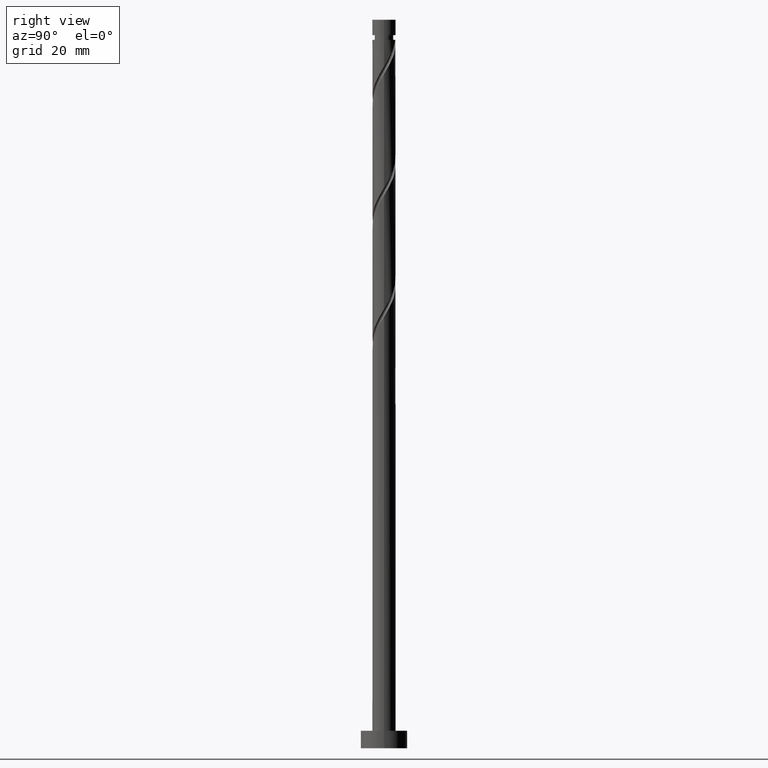
[diagram: clean part render]
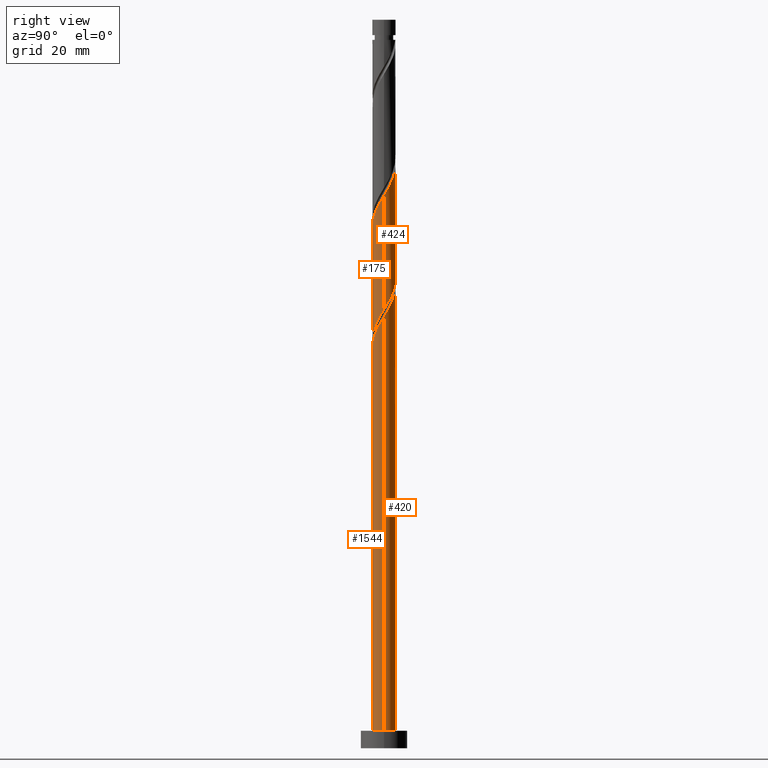
[diagram: same view with one multi-face feature highlighted, each face labeled with its STEP entity id]
A machine part, right view. The highlighted faces form ONE feature: a constant-radius fillet chain: 4 tangent blend faces with common blend radius 2 mm. The faces share edges in the B-rep.
Their STEP definitions:
[1] entity #1544 (Cylinder):
#44 = CARTESIAN_POINT ( 'NONE',  ( 2.000000000000000000, 2.449293598294705921E-16, 3.000000000000000000 ) ) ;
#127 = CARTESIAN_POINT ( 'NONE',  ( -2.000000000000000000, 0.000000000000000000, 125.0000000000000000 ) ) ;
#130 = VECTOR ( 'NONE', #1266, 1000.000000000000000 ) ;
#137 = EDGE_CURVE ( 'NONE', #1291, #1518, #1290, .T. ) ;
#153 = DIRECTION ( 'NONE',  ( -0.000000000000000000, -0.000000000000000000, -1.000000000000000000 ) ) ;
#192 = CARTESIAN_POINT ( 'NONE',  ( -1.896963788657572314, -0.7084284778787400816, 64.78445145408092287 ) ) ;
#199 = CARTESIAN_POINT ( 'NONE',  ( -0.8300743961697168993, -1.819608885673921428, 67.38861812074759428 ) ) ;
#204 = AXIS2_PLACEMENT_3D ( 'NONE', #519, #1367, #390 ) ;
#209 = CARTESIAN_POINT ( 'NONE',  ( 0.08756147180655660112, -2.023036211342433166, 68.95111812074759428 ) ) ;
#252 = CARTESIAN_POINT ( 'NONE',  ( 0.000000000000000000, 0.000000000000000000, 125.0000000000000000 ) ) ;
#299 = CARTESIAN_POINT ( 'NONE',  ( 1.259949568624708416, -1.585203333415019511, 71.03445145408092287 ) ) ;
#310 = CARTESIAN_POINT ( 'NONE',  ( -2.000000000000002665, -2.024068875732766168E-15, 63.59881567927732959 ) ) ;
#326 = CARTESIAN_POINT ( 'NONE',  ( -1.741083561036295801, -0.9841890232517237491, 65.30528478741425147 ) ) ;
#390 = DIRECTION ( 'NONE',  ( 1.000000000000000000, 0.000000000000000000, 0.000000000000000000 ) ) ;
#393 = DIRECTION ( 'NONE',  ( -1.000000000000000000, 0.000000000000000000, 0.000000000000000000 ) ) ;
#443 = CARTESIAN_POINT ( 'NONE',  ( 1.987057982840711556, -0.2271575946980715077, 73.63861812074758006 ) ) ;
#519 = CARTESIAN_POINT ( 'NONE',  ( 0.000000000000000000, 0.000000000000000000, 3.000000000000000000 ) ) ;
#522 = EDGE_CURVE ( 'NONE', #1097, #1291, #1207, .T. ) ;
#568 = CARTESIAN_POINT ( 'NONE',  ( -1.585203333415019511, -1.259949568624708416, 65.82611812074759428 ) ) ;
#662 = CARTESIAN_POINT ( 'NONE',  ( 2.000000000000000000, 2.449293598294705921E-16, 125.0000000000000000 ) ) ;
#668 = CARTESIAN_POINT ( 'NONE',  ( 0.9841890232517237491, -1.741083561036295801, 70.51361812074758006 ) ) ;
#697 = DIRECTION ( 'NONE',  ( -0.000000000000000000, -0.000000000000000000, -1.000000000000000000 ) ) ;
#714 =( BOUNDED_CURVE ( )  B_SPLINE_CURVE ( 2, ( #310, #790, #798, #192, #326, #568, #806, #893, #199, #1041, #1274, #209, #1293, #1534, #668, #299, #1282, #1166, #1025, #1519, #443, #1526, #930 ),
 .UNSPECIFIED., .F., .T. ) 
 B_SPLINE_CURVE_WITH_KNOTS ( ( 3, 2, 2, 2, 2, 2, 2, 2, 2, 2, 2, 3 ),
 ( 0.05453220231385504102, 0.06250000000000000000, 0.07499999999999995559, 0.08750000000000002220, 0.09999999999999997780, 0.1125000000000000444, 0.1250000000000000000, 0.1374999999999999556, 0.1500000000000000222, 0.1624999999999999778, 0.1750000000000000444, 0.1795322023138551937 ),
 .UNSPECIFIED. ) 
 CURVE ( )  GEOMETRIC_REPRESENTATION_ITEM ( )  RATIONAL_B_SPLINE_CURVE ( ( 0.9039174447099427301, 0.9019565955404718061, 0.9090909090909204959, 0.8978984914501364489, 0.9090909090909204959, 0.8978984914501364489, 0.9090909090909204959, 0.8978984914501364489, 0.9090909090909204959, 0.8978984914501364489, 0.9090909090909204959, 0.8978984914501364489, 0.9090909090909204959, 0.8978984914501364489, 0.9090909090909204959, 0.8978984914501364489, 0.9090909090909204959, 0.8978984914501364489, 0.9090909090909204959, 0.8978984914501364489, 0.9090909090909204959, 0.9050328050005848057, 0.9039174447099426191 ) ) 
 REPRESENTATION_ITEM ( '' )  );
#717 = VECTOR ( 'NONE', #697, 1000.000000000000000 ) ;
#782 = EDGE_LOOP ( 'NONE', ( #965, #1429, #1447, #1082 ) ) ;
#790 = CARTESIAN_POINT ( 'NONE',  ( -2.000000000000003997, -0.2010075630518384504, 63.93312025468517135 ) ) ;
#791 = CARTESIAN_POINT ( 'NONE',  ( -2.000000000000000000, 0.000000000000000000, 3.000000000000000000 ) ) ;
#798 = CARTESIAN_POINT ( 'NONE',  ( -1.960000000000002629, -0.3979949748426483414, 64.26361812074758006 ) ) ;
#806 = CARTESIAN_POINT ( 'NONE',  ( -1.351737732275876569, -1.474043792816781329, 66.34695145408090866 ) ) ;
#861 = EDGE_CURVE ( 'NONE', #1097, #1570, #714, .T. ) ;
#893 = CARTESIAN_POINT ( 'NONE',  ( -1.118272131136734071, -1.688138017008854463, 66.86778478741425147 ) ) ;
#930 = CARTESIAN_POINT ( 'NONE',  ( 2.000000000000002665, 1.724206820068652837E-15, 74.01548234594399389 ) ) ;
#931 = AXIS2_PLACEMENT_3D ( 'NONE', #252, #153, #393 ) ;
#965 = ORIENTED_EDGE ( 'NONE', *, *, #1200, .F. ) ;
#998 = FACE_OUTER_BOUND ( 'NONE', #782, .T. ) ;
#1025 = CARTESIAN_POINT ( 'NONE',  ( 1.819608885673921428, -0.8300743961697168993, 72.59695145408090866 ) ) ;
#1041 = CARTESIAN_POINT ( 'NONE',  ( -0.5418766612026993945, -1.951079754338989947, 67.90945145408092287 ) ) ;
#1082 = ORIENTED_EDGE ( 'NONE', *, *, #137, .T. ) ;
#1097 = VERTEX_POINT ( 'NONE', #1109 ) ;
#1109 = CARTESIAN_POINT ( 'NONE',  ( -2.000000000000002665, -2.024068875732766168E-15, 63.59881567927732959 ) ) ;
#1143 = LINE ( 'NONE', #662, #130 ) ;
#1166 = CARTESIAN_POINT ( 'NONE',  ( 1.688138017008854463, -1.118272131136734293, 72.07611812074760849 ) ) ;
#1200 = EDGE_CURVE ( 'NONE', #1570, #1518, #1143, .T. ) ;
#1207 = LINE ( 'NONE', #127, #717 ) ;
#1233 = CYLINDRICAL_SURFACE ( 'NONE', #931, 2.000000000000000000 ) ;
#1266 = DIRECTION ( 'NONE',  ( -0.000000000000000000, -0.000000000000000000, -1.000000000000000000 ) ) ;
#1274 = CARTESIAN_POINT ( 'NONE',  ( -0.2271575946980713689, -1.987057982840711556, 68.43028478741423726 ) ) ;
#1282 = CARTESIAN_POINT ( 'NONE',  ( 1.474043792816781329, -1.351737732275876569, 71.55528478741425147 ) ) ;
#1291 = VERTEX_POINT ( 'NONE', #791 ) ;
#1290 = CIRCLE ( 'NONE', #204, 2.000000000000000000 ) ;
#1293 = CARTESIAN_POINT ( 'NONE',  ( 0.3979949748426481748, -1.960000000000002629, 69.47195145408090866 ) ) ;
#1367 = DIRECTION ( 'NONE',  ( 0.000000000000000000, 0.000000000000000000, 1.000000000000000000 ) ) ;
#1371 = CARTESIAN_POINT ( 'NONE',  ( 2.000000000000002665, 1.724206820068652837E-15, 74.01548234594399389 ) ) ;
#1429 = ORIENTED_EDGE ( 'NONE', *, *, #861, .F. ) ;
#1447 = ORIENTED_EDGE ( 'NONE', *, *, #522, .T. ) ;
#1518 = VERTEX_POINT ( 'NONE', #44 ) ;
#1519 = CARTESIAN_POINT ( 'NONE',  ( 1.951079754338989947, -0.5418766612026996166, 73.11778478741426568 ) ) ;
#1526 = CARTESIAN_POINT ( 'NONE',  ( 2.000000000000002665, -0.1139474748928666625, 73.82597125673669325 ) ) ;
#1534 = CARTESIAN_POINT ( 'NONE',  ( 0.7084284778787399706, -1.896963788657572314, 69.99278478741427989 ) ) ;
#1544 = ADVANCED_FACE ( 'NONE', ( #998 ), #1233, .T. ) ;
#1570 = VERTEX_POINT ( 'NONE', #1371 ) ;
[2] entity #420 (Cylinder):
#29 = CARTESIAN_POINT ( 'NONE',  ( -1.585203333415016624, 1.259949568624707084, 62.70111812074760849 ) ) ;
#44 = CARTESIAN_POINT ( 'NONE',  ( 2.000000000000000000, 2.449293598294705921E-16, 3.000000000000000000 ) ) ;
#45 = ORIENTED_EDGE ( 'NONE', *, *, #1200, .T. ) ;
#56 = CARTESIAN_POINT ( 'NONE',  ( -2.000000000000003109, 0.1139474748928649694, 84.24263792340337886 ) ) ;
#63 = CARTESIAN_POINT ( 'NONE',  ( -1.999999999999999556, -8.621034100343330052E-15, 64.92842056221788027 ) ) ;
#71 = CARTESIAN_POINT ( 'NONE',  ( -1.259949568624708416, 1.585203333415019511, 81.45111812074760849 ) ) ;
#85 = CARTESIAN_POINT ( 'NONE',  ( -0.2271575946980705363, 1.987057982840708892, 60.09695145408091577 ) ) ;
#115 = CARTESIAN_POINT ( 'NONE',  ( -2.000000000000002665, -2.024068875732766168E-15, 84.43214901261065108 ) ) ;
#125 = ORIENTED_EDGE ( 'NONE', *, *, #266, .F. ) ;
#127 = CARTESIAN_POINT ( 'NONE',  ( -2.000000000000000000, 0.000000000000000000, 125.0000000000000000 ) ) ;
#130 = VECTOR ( 'NONE', #1266, 1000.000000000000000 ) ;
#155 = DIRECTION ( 'NONE',  ( 0.000000000000000000, 0.000000000000000000, 1.000000000000000000 ) ) ;
#162 = DIRECTION ( 'NONE',  ( 0.000000000000000000, -8.673617379884037050E-15, -1.000000000000000000 ) ) ;
#187 = CARTESIAN_POINT ( 'NONE',  ( -0.08756147180655639295, 2.023036211342433166, 79.36778478741423726 ) ) ;
#200 = CARTESIAN_POINT ( 'NONE',  ( -2.000000000000000000, 0.000000000000000000, 125.0000000000000000 ) ) ;
#229 = CARTESIAN_POINT ( 'NONE',  ( -0.3979949748426479528, 1.960000000000002629, 59.05528478741425857 ) ) ;
#239 = ORIENTED_EDGE ( 'NONE', *, *, #522, .F. ) ;
#266 = EDGE_CURVE ( 'NONE', #1570, #516, #1533, .T. ) ;
#267 = CARTESIAN_POINT ( 'NONE',  ( -1.896963788657569205, 0.7084284778787394155, 63.74278478741427278 ) ) ;
#273 = CARTESIAN_POINT ( 'NONE',  ( -0.3979949748426479528, 1.960000000000002629, 59.05528478741425857 ) ) ;
#293 = DIRECTION ( 'NONE',  ( -0.000000000000000000, -0.000000000000000000, -1.000000000000000000 ) ) ;
#295 = CARTESIAN_POINT ( 'NONE',  ( -1.987057982840711556, 0.2271575946980712857, 84.05528478741422305 ) ) ;
#353 = CARTESIAN_POINT ( 'NONE',  ( -0.9841890232517239712, 1.741083561036295579, 60.09695145408091577 ) ) ;
#405 = CARTESIAN_POINT ( 'NONE',  ( 0.08756147180655712847, 2.023036211342430946, 59.57611812074759428 ) ) ;
#417 = CARTESIAN_POINT ( 'NONE',  ( 1.118272131136734293, 1.688138017008854019, 77.28445145408090866 ) ) ;
#420 = ADVANCED_FACE ( 'NONE', ( #1555 ), #1050, .T. ) ;
#423 = ORIENTED_EDGE ( 'NONE', *, *, #592, .F. ) ;
#429 = CARTESIAN_POINT ( 'NONE',  ( 1.741083561036296024, 0.9841890232517237491, 75.72195145408092287 ) ) ;
#450 = CARTESIAN_POINT ( 'NONE',  ( -1.819608885673921650, 0.8300743961697165663, 62.18028478741424436 ) ) ;
#485 = VERTEX_POINT ( 'NONE', #1063 ) ;
#516 = VERTEX_POINT ( 'NONE', #115 ) ;
#522 = EDGE_CURVE ( 'NONE', #1097, #1291, #1207, .T. ) ;
#525 = CARTESIAN_POINT ( 'NONE',  ( 0.2271575946980718130, 1.987057982840711556, 78.84695145408093708 ) ) ;
#529 = CARTESIAN_POINT ( 'NONE',  ( 0.000000000000000000, 0.000000000000000000, 59.05528478741428700 ) ) ;
#537 = CARTESIAN_POINT ( 'NONE',  ( 2.000000000000003109, 0.2010075630518418921, 74.34978692135183564 ) ) ;
#553 = CARTESIAN_POINT ( 'NONE',  ( 1.351737732275876569, 1.474043792816780885, 76.76361812074756585 ) ) ;
#576 = DIRECTION ( 'NONE',  ( -0.000000000000000000, -0.000000000000000000, -1.000000000000000000 ) ) ;
#579 = AXIS2_PLACEMENT_3D ( 'NONE', #1479, #155, #1126 ) ;
#592 = EDGE_CURVE ( 'NONE', #731, #1097, #1250, .T. ) ;
#662 = CARTESIAN_POINT ( 'NONE',  ( 2.000000000000000000, 2.449293598294705921E-16, 125.0000000000000000 ) ) ;
#669 = AXIS2_PLACEMENT_3D ( 'NONE', #671, #576, #809 ) ;
#671 = CARTESIAN_POINT ( 'NONE',  ( 0.000000000000000000, 0.000000000000000000, 125.0000000000000000 ) ) ;
#696 = EDGE_CURVE ( 'NONE', #1518, #1291, #1214, .T. ) ;
#697 = DIRECTION ( 'NONE',  ( -0.000000000000000000, -0.000000000000000000, -1.000000000000000000 ) ) ;
#702 = EDGE_CURVE ( 'NONE', #731, #485, #1260, .T. ) ;
#704 = CARTESIAN_POINT ( 'NONE',  ( -2.000000000000002665, 0.1139474748928702291, 63.40930459007006448 ) ) ;
#717 = VECTOR ( 'NONE', #697, 1000.000000000000000 ) ;
#731 = VERTEX_POINT ( 'NONE', #273 ) ;
#752 = ORIENTED_EDGE ( 'NONE', *, *, #1318, .F. ) ;
#762 = CARTESIAN_POINT ( 'NONE',  ( -0.3979949748426479528, 1.960000000000002629, 79.88861812074758006 ) ) ;
#776 = CARTESIAN_POINT ( 'NONE',  ( -0.5418766612026980622, 1.951079754338987504, 60.61778478741427989 ) ) ;
#791 = CARTESIAN_POINT ( 'NONE',  ( -2.000000000000000000, 0.000000000000000000, 3.000000000000000000 ) ) ;
#792 = CARTESIAN_POINT ( 'NONE',  ( -0.7084284778787400816, 1.896963788657572314, 80.40945145408095129 ) ) ;
#804 = CARTESIAN_POINT ( 'NONE',  ( -2.000000000000002665, -2.024068875732766168E-15, 63.59881567927732959 ) ) ;
#809 = DIRECTION ( 'NONE',  ( -1.000000000000000000, 0.000000000000000000, 0.000000000000000000 ) ) ;
#827 = CARTESIAN_POINT ( 'NONE',  ( -1.259949568624708416, 1.585203333415019511, 60.61778478741425857 ) ) ;
#855 = CARTESIAN_POINT ( 'NONE',  ( -2.000000000000001776, 0.2010075630518327605, 64.59411598681002431 ) ) ;
#862 = CARTESIAN_POINT ( 'NONE',  ( -1.741083561036292915, 0.9841890232517229720, 63.22195145408092287 ) ) ;
#880 =( BOUNDED_CURVE ( )  B_SPLINE_CURVE ( 2, ( #1473, #855, #1350, #267, #862, #29, #993, #1480, #894, #776, #85, #405, #904 ),
 .UNSPECIFIED., .F., .T. ) 
 B_SPLINE_CURVE_WITH_KNOTS ( ( 3, 2, 2, 2, 2, 2, 3 ),
 ( 0.9295322023138548051, 0.9375000000000000000, 0.9499999999999999556, 0.9625000000000000222, 0.9749999999999999778, 0.9875000000000000444, 1.000000000000000000 ),
 .UNSPECIFIED. ) 
 CURVE ( )  GEOMETRIC_REPRESENTATION_ITEM ( )  RATIONAL_B_SPLINE_CURVE ( ( 0.9039174447099360687, 0.9019565955404648117, 0.9090909090909136125, 0.8978984914501296766, 0.9090909090909136125, 0.8978984914501296766, 0.9090909090909136125, 0.8978984914501296766, 0.9090909090909136125, 0.8978984914501296766, 0.9090909090909136125, 0.8978984914501296766, 0.9090909090909136125 ) ) 
 REPRESENTATION_ITEM ( '' )  );
#894 = CARTESIAN_POINT ( 'NONE',  ( -0.8300743961697151230, 1.819608885673919207, 61.13861812074759428 ) ) ;
#904 = CARTESIAN_POINT ( 'NONE',  ( 0.3979949748426486744, 1.959999999999999520, 59.05528478741425147 ) ) ;
#927 = CARTESIAN_POINT ( 'NONE',  ( -1.951079754338989947, 0.5418766612026993945, 62.70111812074759428 ) ) ;
#967 = EDGE_LOOP ( 'NONE', ( #125, #45, #1380, #239, #423, #1229, #1165, #752 ) ) ;
#993 = CARTESIAN_POINT ( 'NONE',  ( -1.351737732275873904, 1.474043792816779108, 62.18028478741426568 ) ) ;
#1020 = CARTESIAN_POINT ( 'NONE',  ( 1.585203333415019511, 1.259949568624708416, 76.24278478741426568 ) ) ;
#1027 = CARTESIAN_POINT ( 'NONE',  ( 1.896963788657572314, 0.7084284778787397485, 75.20111812074760849 ) ) ;
#1050 = CYLINDRICAL_SURFACE ( 'NONE', #669, 2.000000000000000000 ) ;
#1063 = CARTESIAN_POINT ( 'NONE',  ( 0.3979949748426486189, 1.959999999999999520, 59.05528478741425857 ) ) ;
#1097 = VERTEX_POINT ( 'NONE', #1109 ) ;
#1109 = CARTESIAN_POINT ( 'NONE',  ( -2.000000000000002665, -2.024068875732766168E-15, 63.59881567927732959 ) ) ;
#1126 = DIRECTION ( 'NONE',  ( 1.000000000000000000, 0.000000000000000000, 0.000000000000000000 ) ) ;
#1128 = CARTESIAN_POINT ( 'NONE',  ( 1.960000000000002629, 0.3979949748426480083, 74.68028478741422305 ) ) ;
#1136 = CARTESIAN_POINT ( 'NONE',  ( -1.819608885673921650, 0.8300743961697165663, 83.01361812074758006 ) ) ;
#1142 = EDGE_CURVE ( 'NONE', #1458, #485, #880, .T. ) ;
#1143 = LINE ( 'NONE', #662, #130 ) ;
#1144 = CARTESIAN_POINT ( 'NONE',  ( -0.9841890232517239712, 1.741083561036295579, 80.93028478741423726 ) ) ;
#1152 = CARTESIAN_POINT ( 'NONE',  ( -2.000000000000002665, -2.024068875732766168E-15, 84.43214901261065108 ) ) ;
#1165 = ORIENTED_EDGE ( 'NONE', *, *, #1142, .F. ) ;
#1200 = EDGE_CURVE ( 'NONE', #1570, #1518, #1143, .T. ) ;
#1207 = LINE ( 'NONE', #127, #717 ) ;
#1214 = CIRCLE ( 'NONE', #579, 2.000000000000000000 ) ;
#1227 = DIRECTION ( 'NONE',  ( 0.000000000000000000, 1.000000000000000000, -1.040834085586084257E-14 ) ) ;
#1229 = ORIENTED_EDGE ( 'NONE', *, *, #702, .T. ) ;
#1250 =( BOUNDED_CURVE ( )  B_SPLINE_CURVE ( 2, ( #229, #1306, #353, #827, #1540, #1418, #450, #927, #1319, #704, #804 ),
 .UNSPECIFIED., .F., .T. ) 
 B_SPLINE_CURVE_WITH_KNOTS ( ( 3, 2, 2, 2, 2, 3 ),
 ( 0.000000000000000000, 0.01249999999999995559, 0.02500000000000002220, 0.03749999999999997780, 0.05000000000000004441, 0.05453220231385504102 ),
 .UNSPECIFIED. ) 
 CURVE ( )  GEOMETRIC_REPRESENTATION_ITEM ( )  RATIONAL_B_SPLINE_CURVE ( ( 0.9090909090909204959, 0.8978984914501364489, 0.9090909090909204959, 0.8978984914501364489, 0.9090909090909204959, 0.8978984914501364489, 0.9090909090909204959, 0.8978984914501364489, 0.9090909090909204959, 0.9050328050005849168, 0.9039174447099427301 ) ) 
 REPRESENTATION_ITEM ( '' )  );
#1260 = CIRCLE ( 'NONE', #1472, 2.000000000000000000 ) ;
#1266 = DIRECTION ( 'NONE',  ( -0.000000000000000000, -0.000000000000000000, -1.000000000000000000 ) ) ;
#1277 = CARTESIAN_POINT ( 'NONE',  ( 0.5418766612026999496, 1.951079754338989947, 78.32611812074762270 ) ) ;
#1283 = LINE ( 'NONE', #200, #1524 ) ;
#1291 = VERTEX_POINT ( 'NONE', #791 ) ;
#1306 = CARTESIAN_POINT ( 'NONE',  ( -0.7084284778787400816, 1.896963788657572314, 59.57611812074758006 ) ) ;
#1318 = EDGE_CURVE ( 'NONE', #516, #1458, #1283, .T. ) ;
#1319 = CARTESIAN_POINT ( 'NONE',  ( -1.987057982840711556, 0.2271575946980712857, 63.22195145408092287 ) ) ;
#1350 = CARTESIAN_POINT ( 'NONE',  ( -1.959999999999999520, 0.3979949748426482858, 64.26361812074759428 ) ) ;
#1371 = CARTESIAN_POINT ( 'NONE',  ( 2.000000000000002665, 1.724206820068652837E-15, 74.01548234594399389 ) ) ;
#1375 = CARTESIAN_POINT ( 'NONE',  ( -1.688138017008854463, 1.118272131136734071, 82.49278478741425147 ) ) ;
#1380 = ORIENTED_EDGE ( 'NONE', *, *, #696, .T. ) ;
#1388 = CARTESIAN_POINT ( 'NONE',  ( -1.951079754338989947, 0.5418766612026993945, 83.53445145408092287 ) ) ;
#1404 = CARTESIAN_POINT ( 'NONE',  ( 2.000000000000002665, 1.724206820068652837E-15, 74.01548234594399389 ) ) ;
#1418 = CARTESIAN_POINT ( 'NONE',  ( -1.688138017008854463, 1.118272131136734071, 61.65945145408092287 ) ) ;
#1458 = VERTEX_POINT ( 'NONE', #63 ) ;
#1472 = AXIS2_PLACEMENT_3D ( 'NONE', #529, #162, #1227 ) ;
#1473 = CARTESIAN_POINT ( 'NONE',  ( -1.999999999999999556, -8.621034100343328475E-15, 64.92842056221788027 ) ) ;
#1479 = CARTESIAN_POINT ( 'NONE',  ( 0.000000000000000000, 0.000000000000000000, 3.000000000000000000 ) ) ;
#1480 = CARTESIAN_POINT ( 'NONE',  ( -1.118272131136732073, 1.688138017008851355, 61.65945145408093708 ) ) ;
#1498 = CARTESIAN_POINT ( 'NONE',  ( 0.8300743961697171214, 1.819608885673921650, 77.80528478741425147 ) ) ;
#1512 = CARTESIAN_POINT ( 'NONE',  ( -1.474043792816781329, 1.351737732275876569, 81.97195145408090866 ) ) ;
#1518 = VERTEX_POINT ( 'NONE', #44 ) ;
#1524 = VECTOR ( 'NONE', #293, 1000.000000000000000 ) ;
#1533 =( BOUNDED_CURVE ( )  B_SPLINE_CURVE ( 2, ( #1404, #537, #1128, #1027, #429, #1020, #553, #417, #1498, #1277, #525, #187, #762, #792, #1144, #71, #1512, #1375, #1136, #1388, #295, #56, #1152 ),
 .UNSPECIFIED., .F., .T. ) 
 B_SPLINE_CURVE_WITH_KNOTS ( ( 3, 2, 2, 2, 2, 2, 2, 2, 2, 2, 2, 3 ),
 ( 0.1795322023138551937, 0.1875000000000000000, 0.1999999999999999556, 0.2125000000000000222, 0.2249999999999999778, 0.2375000000000000444, 0.2500000000000000000, 0.2624999999999999556, 0.2750000000000000222, 0.2874999999999999778, 0.3000000000000000444, 0.3045322023138552492 ),
 .UNSPECIFIED. ) 
 CURVE ( )  GEOMETRIC_REPRESENTATION_ITEM ( )  RATIONAL_B_SPLINE_CURVE ( ( 0.9039174447099426191, 0.9019565955404720281, 0.9090909090909204959, 0.8978984914501364489, 0.9090909090909204959, 0.8978984914501364489, 0.9090909090909204959, 0.8978984914501364489, 0.9090909090909204959, 0.8978984914501364489, 0.9090909090909204959, 0.8978984914501364489, 0.9090909090909204959, 0.8978984914501364489, 0.9090909090909204959, 0.8978984914501364489, 0.9090909090909204959, 0.8978984914501364489, 0.9090909090909204959, 0.8978984914501364489, 0.9090909090909204959, 0.9050328050005848057, 0.9039174447099427301 ) ) 
 REPRESENTATION_ITEM ( '' )  );
#1540 = CARTESIAN_POINT ( 'NONE',  ( -1.474043792816781329, 1.351737732275876569, 61.13861812074759428 ) ) ;
#1555 = FACE_OUTER_BOUND ( 'NONE', #967, .T. ) ;
#1570 = VERTEX_POINT ( 'NONE', #1371 ) ;
[3] entity #175 (Cylinder):
#18 = CARTESIAN_POINT ( 'NONE',  ( 0.2271575946980702587, -1.987057982840708892, 70.51361812074758006 ) ) ;
#46 = CARTESIAN_POINT ( 'NONE',  ( -1.960000000000002629, -0.3979949748426483414, 85.09695145408090866 ) ) ;
#54 = LINE ( 'NONE', #648, #205 ) ;
#63 = CARTESIAN_POINT ( 'NONE',  ( -1.999999999999999556, -8.621034100343330052E-15, 64.92842056221788027 ) ) ;
#69 = CARTESIAN_POINT ( 'NONE',  ( 2.000000000000003997, -0.1139474748928583220, 94.65930459007007869 ) ) ;
#113 = ORIENTED_EDGE ( 'NONE', *, *, #1439, .F. ) ;
#115 = CARTESIAN_POINT ( 'NONE',  ( -2.000000000000002665, -2.024068875732766168E-15, 84.43214901261065108 ) ) ;
#161 = CARTESIAN_POINT ( 'NONE',  ( 1.585203333415016624, -1.259949568624707306, 73.11778478741427989 ) ) ;
#168 = CARTESIAN_POINT ( 'NONE',  ( -2.000000000000002665, -2.024068875732766168E-15, 84.43214901261065108 ) ) ;
#175 = ADVANCED_FACE ( 'NONE', ( #268 ), #1117, .T. ) ;
#200 = CARTESIAN_POINT ( 'NONE',  ( -2.000000000000000000, 0.000000000000000000, 125.0000000000000000 ) ) ;
#205 = VECTOR ( 'NONE', #1504, 1000.000000000000000 ) ;
#208 = VERTEX_POINT ( 'NONE', #1460 ) ;
#265 = CARTESIAN_POINT ( 'NONE',  ( -0.8300743961697168993, -1.819608885673921428, 88.22195145408092287 ) ) ;
#268 = FACE_OUTER_BOUND ( 'NONE', #482, .T. ) ;
#281 = DIRECTION ( 'NONE',  ( -0.000000000000000000, -0.000000000000000000, -1.000000000000000000 ) ) ;
#292 = CARTESIAN_POINT ( 'NONE',  ( 0.7084284778787399706, -1.896963788657572314, 90.82611812074759428 ) ) ;
#293 = DIRECTION ( 'NONE',  ( -0.000000000000000000, -0.000000000000000000, -1.000000000000000000 ) ) ;
#308 = ORIENTED_EDGE ( 'NONE', *, *, #1318, .T. ) ;
#381 = CARTESIAN_POINT ( 'NONE',  ( 1.474043792816781329, -1.351737732275876569, 92.38861812074756585 ) ) ;
#386 = CARTESIAN_POINT ( 'NONE',  ( -1.688138017008851355, -1.118272131136731851, 66.86778478741425147 ) ) ;
#445 = CARTESIAN_POINT ( 'NONE',  ( 1.959999999999999520, -0.3979949748426485634, 74.68028478741425147 ) ) ;
#482 = EDGE_LOOP ( 'NONE', ( #113, #1247, #308, #1322 ) ) ;
#499 = CARTESIAN_POINT ( 'NONE',  ( -1.819608885673919207, -0.8300743961697149009, 66.34695145408092287 ) ) ;
#501 = CARTESIAN_POINT ( 'NONE',  ( -1.741083561036295801, -0.9841890232517237491, 86.13861812074759428 ) ) ;
#507 = CARTESIAN_POINT ( 'NONE',  ( -1.999999999999998224, -0.1139474748928754055, 65.11793165142515249 ) ) ;
#515 = CARTESIAN_POINT ( 'NONE',  ( -1.999999999999999556, -8.621034100343328475E-15, 64.92842056221788027 ) ) ;
#516 = VERTEX_POINT ( 'NONE', #115 ) ;
#517 = CARTESIAN_POINT ( 'NONE',  ( -0.5418766612026993945, -1.951079754338989947, 88.74278478741425147 ) ) ;
#523 = CARTESIAN_POINT ( 'NONE',  ( -1.585203333415019511, -1.259949568624708416, 86.65945145408089445 ) ) ;
#561 =( BOUNDED_CURVE ( )  B_SPLINE_CURVE ( 2, ( #168, #981, #46, #622, #501, #523, #1005, #640, #265, #517, #1503, #744, #886, #292, #628, #1115, #381, #854, #1107, #1264, #677, #69, #919 ),
 .UNSPECIFIED., .F., .F. ) 
 B_SPLINE_CURVE_WITH_KNOTS ( ( 3, 2, 2, 2, 2, 2, 2, 2, 2, 2, 2, 3 ),
 ( 0.3045322023138552492, 0.3125000000000000000, 0.3249999999999999556, 0.3375000000000000222, 0.3499999999999999778, 0.3625000000000000444, 0.3750000000000000000, 0.3874999999999999556, 0.4000000000000000222, 0.4124999999999999778, 0.4250000000000000444, 0.4295322023138555267 ),
 .UNSPECIFIED. ) 
 CURVE ( )  GEOMETRIC_REPRESENTATION_ITEM ( )  RATIONAL_B_SPLINE_CURVE ( ( 0.9039174447099427301, 0.9019565955404720281, 0.9090909090909204959, 0.8978984914501364489, 0.9090909090909204959, 0.8978984914501364489, 0.9090909090909204959, 0.8978984914501364489, 0.9090909090909204959, 0.8978984914501364489, 0.9090909090909204959, 0.8978984914501364489, 0.9090909090909204959, 0.8978984914501364489, 0.9090909090909204959, 0.8978984914501364489, 0.9090909090909204959, 0.8978984914501364489, 0.9090909090909204959, 0.8978984914501364489, 0.9090909090909204959, 0.9050328050005844727, 0.9039174447099425080 ) ) 
 REPRESENTATION_ITEM ( '' )  );
#582 = VERTEX_POINT ( 'NONE', #819 ) ;
#622 = CARTESIAN_POINT ( 'NONE',  ( -1.896963788657572314, -0.7084284778787400816, 85.61778478741427989 ) ) ;
#628 = CARTESIAN_POINT ( 'NONE',  ( 0.9841890232517237491, -1.741083561036295801, 91.34695145408090866 ) ) ;
#633 = CARTESIAN_POINT ( 'NONE',  ( -0.3979949748426485079, -1.959999999999999520, 69.47195145408090866 ) ) ;
#640 = CARTESIAN_POINT ( 'NONE',  ( -1.118272131136734071, -1.688138017008854463, 87.70111812074760849 ) ) ;
#648 = CARTESIAN_POINT ( 'NONE',  ( 2.000000000000000000, 2.449293598294705921E-16, 125.0000000000000000 ) ) ;
#677 = CARTESIAN_POINT ( 'NONE',  ( 1.987057982840711556, -0.2271575946980715077, 94.47195145408092287 ) ) ;
#744 = CARTESIAN_POINT ( 'NONE',  ( 0.08756147180655660112, -2.023036211342433166, 89.78445145408089445 ) ) ;
#747 = EDGE_CURVE ( 'NONE', #516, #582, #561, .T. ) ;
#759 = CARTESIAN_POINT ( 'NONE',  ( 0.8300743961697149009, -1.819608885673919207, 71.55528478741423726 ) ) ;
#819 = CARTESIAN_POINT ( 'NONE',  ( 2.000000000000002665, 1.724206820068652837E-15, 94.84881567927732249 ) ) ;
#854 = CARTESIAN_POINT ( 'NONE',  ( 1.688138017008854463, -1.118272131136734293, 92.90945145408090866 ) ) ;
#867 = CARTESIAN_POINT ( 'NONE',  ( -0.08756147180655739215, -2.023036211342430946, 69.99278478741426568 ) ) ;
#876 = CARTESIAN_POINT ( 'NONE',  ( -0.9841890232517231940, -1.741083561036292915, 68.43028478741426568 ) ) ;
#886 = CARTESIAN_POINT ( 'NONE',  ( 0.3979949748426481748, -1.960000000000002629, 90.30528478741425147 ) ) ;
#919 = CARTESIAN_POINT ( 'NONE',  ( 2.000000000000002665, 1.724206820068652837E-15, 94.84881567927733670 ) ) ;
#921 = CARTESIAN_POINT ( 'NONE',  ( 1.896963788657568761, -0.7084284778787396375, 74.15945145408095129 ) ) ;
#981 = CARTESIAN_POINT ( 'NONE',  ( -2.000000000000003109, -0.2010075630518436129, 84.76645358801850705 ) ) ;
#1001 = CARTESIAN_POINT ( 'NONE',  ( 0.000000000000000000, 0.000000000000000000, 125.0000000000000000 ) ) ;
#1004 = CARTESIAN_POINT ( 'NONE',  ( 1.118272131136731851, -1.688138017008851577, 72.07611812074759428 ) ) ;
#1005 = CARTESIAN_POINT ( 'NONE',  ( -1.351737732275876569, -1.474043792816781329, 87.18028478741422305 ) ) ;
#1042 = CARTESIAN_POINT ( 'NONE',  ( 1.999999999999999556, 2.803710220459482995E-15, 75.34508722888452326 ) ) ;
#1107 = CARTESIAN_POINT ( 'NONE',  ( 1.819608885673921428, -0.8300743961697168993, 93.43028478741425147 ) ) ;
#1115 = CARTESIAN_POINT ( 'NONE',  ( 1.259949568624708416, -1.585203333415019511, 91.86778478741423726 ) ) ;
#1117 = CYLINDRICAL_SURFACE ( 'NONE', #1497, 2.000000000000000000 ) ;
#1120 = CARTESIAN_POINT ( 'NONE',  ( 1.351737732275873904, -1.474043792816779330, 72.59695145408095129 ) ) ;
#1246 = CARTESIAN_POINT ( 'NONE',  ( -1.474043792816779330, -1.351737732275873904, 67.38861812074759428 ) ) ;
#1247 = ORIENTED_EDGE ( 'NONE', *, *, #747, .F. ) ;
#1264 = CARTESIAN_POINT ( 'NONE',  ( 1.951079754338989947, -0.5418766612026996166, 93.95111812074759428 ) ) ;
#1283 = LINE ( 'NONE', #200, #1524 ) ;
#1318 = EDGE_CURVE ( 'NONE', #516, #1458, #1283, .T. ) ;
#1322 = ORIENTED_EDGE ( 'NONE', *, *, #1488, .F. ) ;
#1359 = DIRECTION ( 'NONE',  ( -1.000000000000000000, 0.000000000000000000, 0.000000000000000000 ) ) ;
#1362 = CARTESIAN_POINT ( 'NONE',  ( -1.259949568624707306, -1.585203333415016624, 67.90945145408093708 ) ) ;
#1412 = CARTESIAN_POINT ( 'NONE',  ( 1.741083561036292915, -0.9841890232517231940, 73.63861812074759428 ) ) ;
#1416 =( BOUNDED_CURVE ( )  B_SPLINE_CURVE ( 2, ( #1042, #1535, #445, #921, #1412, #161, #1120, #1004, #759, #1502, #18, #867, #633, #1477, #876, #1362, #1246, #386, #499, #1485, #1493, #507, #515 ),
 .UNSPECIFIED., .F., .T. ) 
 B_SPLINE_CURVE_WITH_KNOTS ( ( 3, 2, 2, 2, 2, 2, 2, 2, 2, 2, 2, 3 ),
 ( 0.8045322023138551382, 0.8125000000000000000, 0.8249999999999999556, 0.8375000000000000222, 0.8499999999999999778, 0.8625000000000000444, 0.8750000000000000000, 0.8874999999999999556, 0.9000000000000000222, 0.9124999999999999778, 0.9250000000000000444, 0.9295322023138548051 ),
 .UNSPECIFIED. ) 
 CURVE ( )  GEOMETRIC_REPRESENTATION_ITEM ( )  RATIONAL_B_SPLINE_CURVE ( ( 0.9039174447099358467, 0.9019565955404651447, 0.9090909090909136125, 0.8978984914501296766, 0.9090909090909136125, 0.8978984914501296766, 0.9090909090909136125, 0.8978984914501296766, 0.9090909090909136125, 0.8978984914501296766, 0.9090909090909136125, 0.8978984914501296766, 0.9090909090909136125, 0.8978984914501296766, 0.9090909090909136125, 0.8978984914501296766, 0.9090909090909136125, 0.8978984914501296766, 0.9090909090909136125, 0.8978984914501296766, 0.9090909090909136125, 0.9050328050005784775, 0.9039174447099360687 ) ) 
 REPRESENTATION_ITEM ( '' )  );
#1439 = EDGE_CURVE ( 'NONE', #582, #208, #54, .T. ) ;
#1458 = VERTEX_POINT ( 'NONE', #63 ) ;
#1460 = CARTESIAN_POINT ( 'NONE',  ( 1.999999999999999556, 2.803710220459482995E-15, 75.34508722888452326 ) ) ;
#1477 = CARTESIAN_POINT ( 'NONE',  ( -0.7084284778787396375, -1.896963788657568761, 68.95111812074759428 ) ) ;
#1485 = CARTESIAN_POINT ( 'NONE',  ( -1.951079754338987504, -0.5418766612026980622, 65.82611812074760849 ) ) ;
#1488 = EDGE_CURVE ( 'NONE', #208, #1458, #1416, .T. ) ;
#1493 = CARTESIAN_POINT ( 'NONE',  ( -1.987057982840708892, -0.2271575946980704253, 65.30528478741426568 ) ) ;
#1497 = AXIS2_PLACEMENT_3D ( 'NONE', #1001, #281, #1359 ) ;
#1502 = CARTESIAN_POINT ( 'NONE',  ( 0.5418766612026979512, -1.951079754338987060, 71.03445145408093708 ) ) ;
#1503 = CARTESIAN_POINT ( 'NONE',  ( -0.2271575946980713689, -1.987057982840711556, 89.26361812074758006 ) ) ;
#1504 = DIRECTION ( 'NONE',  ( -0.000000000000000000, -0.000000000000000000, -1.000000000000000000 ) ) ;
#1524 = VECTOR ( 'NONE', #293, 1000.000000000000000 ) ;
#1535 = CARTESIAN_POINT ( 'NONE',  ( 2.000000000000000000, -0.2010075630518413370, 75.01078265347669571 ) ) ;
[4] entity #424 (Cylinder):
#2 = AXIS2_PLACEMENT_3D ( 'NONE', #210, #1175, #678 ) ;
#48 = CARTESIAN_POINT ( 'NONE',  ( 1.999999999999999556, 0.1139474748928668291, 75.53459831809180969 ) ) ;
#54 = LINE ( 'NONE', #648, #205 ) ;
#95 = CARTESIAN_POINT ( 'NONE',  ( -1.999999999999999556, -3.043599864990775474E-15, 85.76175389555119466 ) ) ;
#103 = CARTESIAN_POINT ( 'NONE',  ( -1.259949568624708416, 1.585203333415019511, 102.2844514540809229 ) ) ;
#164 = CARTESIAN_POINT ( 'NONE',  ( 1.819608885673919429, 0.8300743961697146789, 76.76361812074759428 ) ) ;
#194 = CARTESIAN_POINT ( 'NONE',  ( -0.2271575946980705363, 1.987057982840708892, 80.93028478741427989 ) ) ;
#205 = VECTOR ( 'NONE', #1504, 1000.000000000000000 ) ;
#208 = VERTEX_POINT ( 'NONE', #1460 ) ;
#210 = CARTESIAN_POINT ( 'NONE',  ( 0.000000000000000000, 0.000000000000000000, 125.0000000000000000 ) ) ;
#236 = CARTESIAN_POINT ( 'NONE',  ( -2.000000000000003109, 0.1139474748928649694, 105.0759712567367075 ) ) ;
#288 = CARTESIAN_POINT ( 'NONE',  ( 1.474043792816779330, 1.351737732275873904, 77.80528478741425147 ) ) ;
#302 = CARTESIAN_POINT ( 'NONE',  ( -1.741083561036292915, 0.9841890232517229720, 84.05528478741426568 ) ) ;
#312 = EDGE_CURVE ( 'NONE', #486, #208, #614, .T. ) ;
#313 = CARTESIAN_POINT ( 'NONE',  ( -1.118272131136732073, 1.688138017008851355, 82.49278478741429410 ) ) ;
#321 = CARTESIAN_POINT ( 'NONE',  ( -1.896963788657569205, 0.7084284778787394155, 84.57611812074758006 ) ) ;
#327 = CARTESIAN_POINT ( 'NONE',  ( 1.960000000000002629, 0.3979949748426480083, 95.51361812074755164 ) ) ;
#336 = CARTESIAN_POINT ( 'NONE',  ( 2.000000000000001332, 0.2010075630518501910, 95.18312025468515003 ) ) ;
#359 = CARTESIAN_POINT ( 'NONE',  ( -1.987057982840711556, 0.2271575946980712857, 104.8886181207475659 ) ) ;
#411 = CARTESIAN_POINT ( 'NONE',  ( -1.959999999999999520, 0.3979949748426482858, 85.09695145408090866 ) ) ;
#424 = ADVANCED_FACE ( 'NONE', ( #922 ), #446, .T. ) ;
#437 = CARTESIAN_POINT ( 'NONE',  ( -0.8300743961697151230, 1.819608885673919207, 81.97195145408092287 ) ) ;
#446 = CYLINDRICAL_SURFACE ( 'NONE', #2, 2.000000000000000000 ) ;
#464 = CARTESIAN_POINT ( 'NONE',  ( 0.8300743961697171214, 1.819608885673921650, 98.63861812074756585 ) ) ;
#473 = EDGE_CURVE ( 'NONE', #582, #842, #1089, .T. ) ;
#478 = CARTESIAN_POINT ( 'NONE',  ( -0.3979949748426479528, 1.960000000000002629, 100.7219514540809087 ) ) ;
#486 = VERTEX_POINT ( 'NONE', #95 ) ;
#532 = CARTESIAN_POINT ( 'NONE',  ( -0.5418766612026980622, 1.951079754338987504, 81.45111812074758006 ) ) ;
#545 = CARTESIAN_POINT ( 'NONE',  ( -1.351737732275873904, 1.474043792816779108, 83.01361812074759428 ) ) ;
#572 = CARTESIAN_POINT ( 'NONE',  ( -1.819608885673921650, 0.8300743961697165663, 103.8469514540809087 ) ) ;
#582 = VERTEX_POINT ( 'NONE', #819 ) ;
#614 =( BOUNDED_CURVE ( )  B_SPLINE_CURVE ( 2, ( #1014, #1397, #411, #321, #302, #642, #545, #313, #437, #532, #194, #888, #1035, #1381, #663, #777, #288, #1528, #164, #1123, #769, #48, #1257 ),
 .UNSPECIFIED., .F., .F. ) 
 B_SPLINE_CURVE_WITH_KNOTS ( ( 3, 2, 2, 2, 2, 2, 2, 2, 2, 2, 2, 3 ),
 ( 0.6795322023138551382, 0.6875000000000000000, 0.6999999999999999556, 0.7125000000000000222, 0.7249999999999999778, 0.7375000000000000444, 0.7500000000000000000, 0.7624999999999999556, 0.7750000000000000222, 0.7874999999999999778, 0.8000000000000000444, 0.8045322023138551382 ),
 .UNSPECIFIED. ) 
 CURVE ( )  GEOMETRIC_REPRESENTATION_ITEM ( )  RATIONAL_B_SPLINE_CURVE ( ( 0.9039174447099358467, 0.9019565955404651447, 0.9090909090909136125, 0.8978984914501296766, 0.9090909090909136125, 0.8978984914501296766, 0.9090909090909136125, 0.8978984914501296766, 0.9090909090909136125, 0.8978984914501296766, 0.9090909090909136125, 0.8978984914501296766, 0.9090909090909136125, 0.8978984914501296766, 0.9090909090909136125, 0.8978984914501296766, 0.9090909090909136125, 0.8978984914501296766, 0.9090909090909136125, 0.8978984914501296766, 0.9090909090909136125, 0.9050328050005780334, 0.9039174447099358467 ) ) 
 REPRESENTATION_ITEM ( '' )  );
#642 = CARTESIAN_POINT ( 'NONE',  ( -1.585203333415016624, 1.259949568624707084, 83.53445145408093708 ) ) ;
#648 = CARTESIAN_POINT ( 'NONE',  ( 2.000000000000000000, 2.449293598294705921E-16, 125.0000000000000000 ) ) ;
#663 = CARTESIAN_POINT ( 'NONE',  ( 0.9841890232517236381, 1.741083561036292915, 78.84695145408093708 ) ) ;
#678 = DIRECTION ( 'NONE',  ( -1.000000000000000000, 0.000000000000000000, 0.000000000000000000 ) ) ;
#681 = CARTESIAN_POINT ( 'NONE',  ( 1.118272131136734293, 1.688138017008854019, 98.11778478741425147 ) ) ;
#688 = CARTESIAN_POINT ( 'NONE',  ( -0.7084284778787400816, 1.896963788657572314, 101.2427847874142657 ) ) ;
#709 = ORIENTED_EDGE ( 'NONE', *, *, #1439, .T. ) ;
#768 = DIRECTION ( 'NONE',  ( -0.000000000000000000, -0.000000000000000000, -1.000000000000000000 ) ) ;
#769 = CARTESIAN_POINT ( 'NONE',  ( 1.987057982840708892, 0.2271575946980701477, 75.72195145408093708 ) ) ;
#777 = CARTESIAN_POINT ( 'NONE',  ( 1.259949568624707528, 1.585203333415016180, 78.32611812074762270 ) ) ;
#783 = CARTESIAN_POINT ( 'NONE',  ( -2.000000000000002665, 1.829158539551092187E-15, 105.2654823459439939 ) ) ;
#807 = EDGE_LOOP ( 'NONE', ( #817, #709, #1056, #926 ) ) ;
#817 = ORIENTED_EDGE ( 'NONE', *, *, #473, .F. ) ;
#819 = CARTESIAN_POINT ( 'NONE',  ( 2.000000000000002665, 1.724206820068652837E-15, 94.84881567927732249 ) ) ;
#833 = CARTESIAN_POINT ( 'NONE',  ( -2.000000000000002665, 1.829158539551092187E-15, 105.2654823459440081 ) ) ;
#842 = VERTEX_POINT ( 'NONE', #783 ) ;
#877 = VECTOR ( 'NONE', #768, 1000.000000000000000 ) ;
#881 = LINE ( 'NONE', #1374, #877 ) ;
#888 = CARTESIAN_POINT ( 'NONE',  ( 0.08756147180655712847, 2.023036211342430946, 80.40945145408093708 ) ) ;
#922 = FACE_OUTER_BOUND ( 'NONE', #807, .T. ) ;
#926 = ORIENTED_EDGE ( 'NONE', *, *, #1385, .F. ) ;
#934 = CARTESIAN_POINT ( 'NONE',  ( 1.741083561036296024, 0.9841890232517237491, 96.55528478741422305 ) ) ;
#937 = CARTESIAN_POINT ( 'NONE',  ( -0.9841890232517239712, 1.741083561036295579, 101.7636181207475943 ) ) ;
#962 = CARTESIAN_POINT ( 'NONE',  ( -1.474043792816781329, 1.351737732275876569, 102.8052847874142230 ) ) ;
#1014 = CARTESIAN_POINT ( 'NONE',  ( -1.999999999999999556, -3.043599864990775474E-15, 85.76175389555119466 ) ) ;
#1035 = CARTESIAN_POINT ( 'NONE',  ( 0.3979949748426486744, 1.959999999999999520, 79.88861812074759428 ) ) ;
#1056 = ORIENTED_EDGE ( 'NONE', *, *, #312, .F. ) ;
#1071 = CARTESIAN_POINT ( 'NONE',  ( 1.585203333415019511, 1.259949568624708416, 97.07611812074762270 ) ) ;
#1089 =( BOUNDED_CURVE ( )  B_SPLINE_CURVE ( 2, ( #1414, #336, #327, #1159, #934, #1071, #1435, #681, #464, #1312, #1179, #1574, #478, #688, #937, #103, #962, #1558, #572, #1452, #359, #236, #833 ),
 .UNSPECIFIED., .F., .T. ) 
 B_SPLINE_CURVE_WITH_KNOTS ( ( 3, 2, 2, 2, 2, 2, 2, 2, 2, 2, 2, 3 ),
 ( 0.4295322023138555267, 0.4375000000000000000, 0.4499999999999999556, 0.4625000000000000222, 0.4749999999999999778, 0.4875000000000000444, 0.5000000000000000000, 0.5124999999999999556, 0.5250000000000000222, 0.5374999999999999778, 0.5500000000000000444, 0.5545322023138552492 ),
 .UNSPECIFIED. ) 
 CURVE ( )  GEOMETRIC_REPRESENTATION_ITEM ( )  RATIONAL_B_SPLINE_CURVE ( ( 0.9039174447099425080, 0.9019565955404722501, 0.9090909090909204959, 0.8978984914501364489, 0.9090909090909204959, 0.8978984914501364489, 0.9090909090909204959, 0.8978984914501364489, 0.9090909090909204959, 0.8978984914501364489, 0.9090909090909204959, 0.8978984914501364489, 0.9090909090909204959, 0.8978984914501364489, 0.9090909090909204959, 0.8978984914501364489, 0.9090909090909204959, 0.8978984914501364489, 0.9090909090909204959, 0.8978984914501364489, 0.9090909090909204959, 0.9050328050005848057, 0.9039174447099427301 ) ) 
 REPRESENTATION_ITEM ( '' )  );
#1123 = CARTESIAN_POINT ( 'NONE',  ( 1.951079754338987504, 0.5418766612026979512, 76.24278478741425147 ) ) ;
#1159 = CARTESIAN_POINT ( 'NONE',  ( 1.896963788657572314, 0.7084284778787397485, 96.03445145408093708 ) ) ;
#1175 = DIRECTION ( 'NONE',  ( -0.000000000000000000, -0.000000000000000000, -1.000000000000000000 ) ) ;
#1179 = CARTESIAN_POINT ( 'NONE',  ( 0.2271575946980718130, 1.987057982840711556, 99.68028478741422305 ) ) ;
#1257 = CARTESIAN_POINT ( 'NONE',  ( 1.999999999999999556, 2.803710220459482995E-15, 75.34508722888452326 ) ) ;
#1312 = CARTESIAN_POINT ( 'NONE',  ( 0.5418766612026999496, 1.951079754338989947, 99.15945145408093708 ) ) ;
#1374 = CARTESIAN_POINT ( 'NONE',  ( -2.000000000000000000, 0.000000000000000000, 125.0000000000000000 ) ) ;
#1381 = CARTESIAN_POINT ( 'NONE',  ( 0.7084284778787397485, 1.896963788657568761, 79.36778478741425147 ) ) ;
#1385 = EDGE_CURVE ( 'NONE', #842, #486, #881, .T. ) ;
#1397 = CARTESIAN_POINT ( 'NONE',  ( -2.000000000000000000, 0.2010075630518411427, 85.42744932014333870 ) ) ;
#1414 = CARTESIAN_POINT ( 'NONE',  ( 2.000000000000002665, 1.724206820068652837E-15, 94.84881567927733670 ) ) ;
#1435 = CARTESIAN_POINT ( 'NONE',  ( 1.351737732275876569, 1.474043792816780885, 97.59695145408090866 ) ) ;
#1439 = EDGE_CURVE ( 'NONE', #582, #208, #54, .T. ) ;
#1452 = CARTESIAN_POINT ( 'NONE',  ( -1.951079754338989947, 0.5418766612026993945, 104.3677847874142515 ) ) ;
#1460 = CARTESIAN_POINT ( 'NONE',  ( 1.999999999999999556, 2.803710220459482995E-15, 75.34508722888452326 ) ) ;
#1504 = DIRECTION ( 'NONE',  ( -0.000000000000000000, -0.000000000000000000, -1.000000000000000000 ) ) ;
#1528 = CARTESIAN_POINT ( 'NONE',  ( 1.688138017008851355, 1.118272131136731629, 77.28445145408090866 ) ) ;
#1558 = CARTESIAN_POINT ( 'NONE',  ( -1.688138017008854463, 1.118272131136734071, 103.3261181207475943 ) ) ;
#1574 = CARTESIAN_POINT ( 'NONE',  ( -0.08756147180655639295, 2.023036211342433166, 100.2011181207475801 ) ) ;